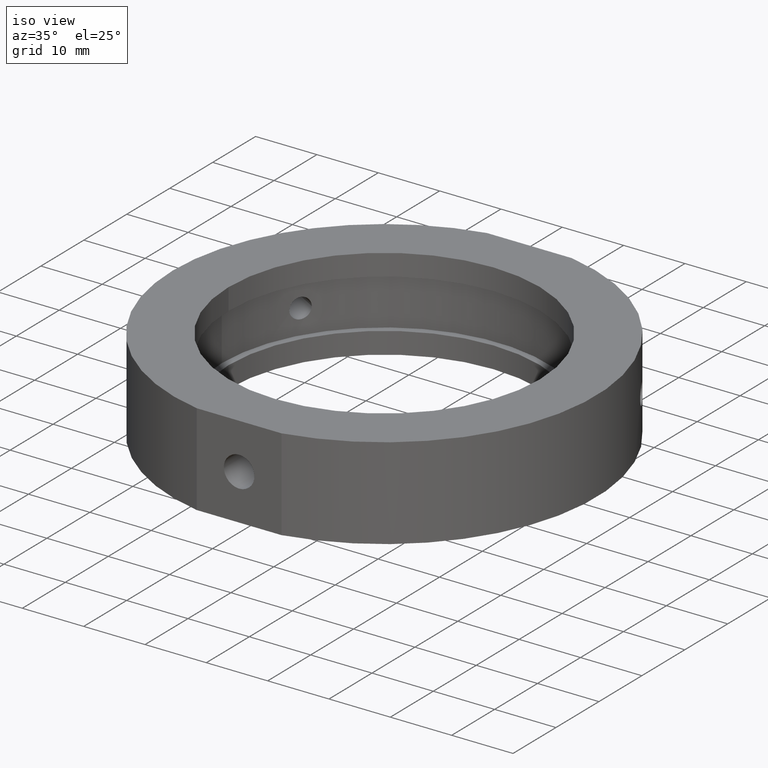
[diagram: clean part render]
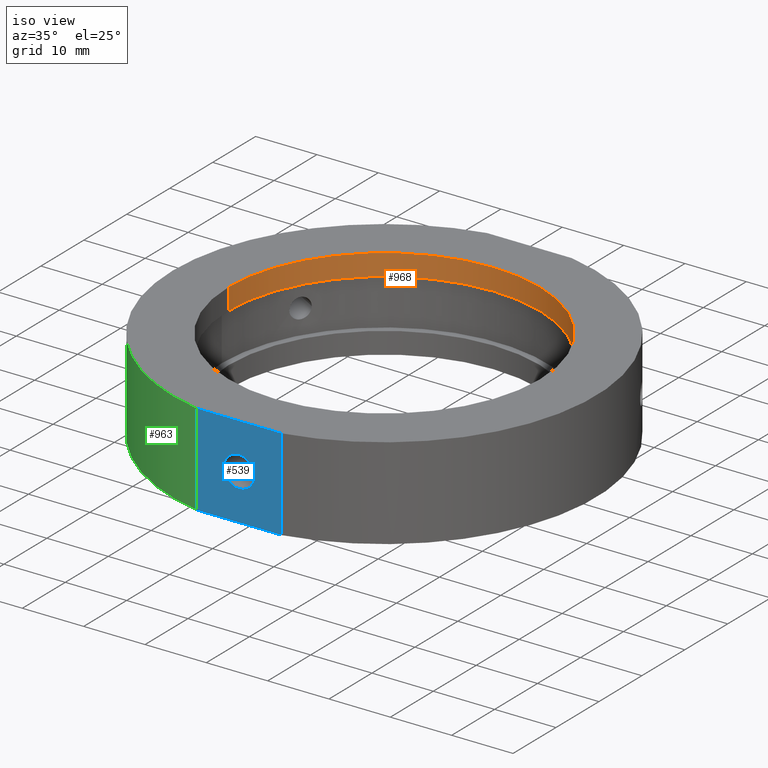
[diagram: same view with three faces highlighted in distinct colors, each labeled with its STEP entity id]
A machine part, iso view with three faces highlighted in distinct colors.
Their STEP definitions:

[orange] entity #968 — the highlighted cylindrical surface (partial cylindrical patch) has radius 25.4 mm, axis along (-0, -0, -1).
#44 = EDGE_CURVE ( 'NONE', #799, #272, #96, .T. ) ;
#58 = DIRECTION ( 'NONE',  ( -1.000000000000000000, 0.0000000000000000000, 0.0000000000000000000 ) ) ;
#72 = DIRECTION ( 'NONE',  ( -1.224646799147350500E-016, -0.0000000000000000000, -1.000000000000000000 ) ) ;
#83 = EDGE_LOOP ( 'NONE', ( #1021, #257, #533, #783 ) ) ;
#96 = LINE ( 'NONE', #700, #1068 ) ;
#214 = CARTESIAN_POINT ( 'NONE',  ( 4.401266471344255700E-015, 0.0000000000000000000, 3.999999999999996400 ) ) ;
#240 = FACE_OUTER_BOUND ( 'NONE', #83, .T. ) ;
#247 = DIRECTION ( 'NONE',  ( -1.224646799147350500E-016, -0.0000000000000000000, -1.000000000000000000 ) ) ;
#257 = ORIENTED_EDGE ( 'NONE', *, *, #413, .F. ) ;
#272 = VERTEX_POINT ( 'NONE', #286 ) ;
#286 = CARTESIAN_POINT ( 'NONE',  ( 25.39999999999999900, 3.110602869834276500E-015, 3.999999999999993300 ) ) ;
#288 = EDGE_CURVE ( 'NONE', #755, #272, #530, .T. ) ;
#310 = DIRECTION ( 'NONE',  ( -1.224646799147350500E-016, -0.0000000000000000000, -1.000000000000000000 ) ) ;
#321 = CARTESIAN_POINT ( 'NONE',  ( 4.829892851045828800E-015, 0.0000000000000000000, 7.500000000000000000 ) ) ;
#350 = LINE ( 'NONE', #720, #973 ) ;
#413 = EDGE_CURVE ( 'NONE', #454, #799, #1095, .T. ) ;
#454 = VERTEX_POINT ( 'NONE', #772 ) ;
#463 = DIRECTION ( 'NONE',  ( -1.224646799147350500E-016, -0.0000000000000000000, -1.000000000000000000 ) ) ;
#469 = AXIS2_PLACEMENT_3D ( 'NONE', #480, #310, #58 ) ;
#480 = CARTESIAN_POINT ( 'NONE',  ( 0.0000000000000000000, 0.0000000000000000000, -31.93906810035839800 ) ) ;
#530 = CIRCLE ( 'NONE', #621, 25.39999999999999500 ) ;
#533 = ORIENTED_EDGE ( 'NONE', *, *, #704, .T. ) ;
#582 = DIRECTION ( 'NONE',  ( -1.000000000000000000, 0.0000000000000000000, 1.365923996832131900E-016 ) ) ;
#621 = AXIS2_PLACEMENT_3D ( 'NONE', #214, #1012, #1100 ) ;
#700 = CARTESIAN_POINT ( 'NONE',  ( 25.39999999999999500, 3.110602869834276500E-015, -31.93906810035839800 ) ) ;
#704 = EDGE_CURVE ( 'NONE', #454, #755, #350, .T. ) ;
#720 = CARTESIAN_POINT ( 'NONE',  ( -25.39999999999999500, 0.0000000000000000000, -31.93906810035839800 ) ) ;
#755 = VERTEX_POINT ( 'NONE', #812 ) ;
#772 = CARTESIAN_POINT ( 'NONE',  ( -25.39999999999999100, 0.0000000000000000000, 7.500000000000003600 ) ) ;
#783 = ORIENTED_EDGE ( 'NONE', *, *, #288, .T. ) ;
#799 = VERTEX_POINT ( 'NONE', #1000 ) ;
#807 = CYLINDRICAL_SURFACE ( 'NONE', #469, 25.39999999999999500 ) ;
#812 = CARTESIAN_POINT ( 'NONE',  ( -25.39999999999999100, 0.0000000000000000000, 4.000000000000000000 ) ) ;
#968 = ADVANCED_FACE ( 'NONE', ( #240 ), #807, .F. ) ;
#973 = VECTOR ( 'NONE', #463, 1000.000000000000000 ) ;
#992 = AXIS2_PLACEMENT_3D ( 'NONE', #321, #72, #582 ) ;
#1000 = CARTESIAN_POINT ( 'NONE',  ( 25.39999999999999900, 3.110602869834276500E-015, 7.499999999999996400 ) ) ;
#1012 = DIRECTION ( 'NONE',  ( -1.224646799147350500E-016, -0.0000000000000000000, -1.000000000000000000 ) ) ;
#1021 = ORIENTED_EDGE ( 'NONE', *, *, #44, .F. ) ;
#1068 = VECTOR ( 'NONE', #247, 1000.000000000000000 ) ;
#1095 = CIRCLE ( 'NONE', #992, 25.39999999999999500 ) ;
#1100 = DIRECTION ( 'NONE',  ( -1.000000000000000000, 0.0000000000000000000, 1.365923996832131900E-016 ) ) ;

[blue] entity #539 — the highlighted planar face has unit normal (-0, 1, 0).
#20 = VERTEX_POINT ( 'NONE', #594 ) ;
#27 = CARTESIAN_POINT ( 'NONE',  ( -6.914477565225098500, -33.79999999999998300, -31.93906810035839800 ) ) ;
#30 = DIRECTION ( 'NONE',  ( -1.224646799147350500E-016, -0.0000000000000000000, -1.000000000000000000 ) ) ;
#39 = CARTESIAN_POINT ( 'NONE',  ( 5.204170427930421300E-015, -33.79999999999999700, -2.499999999999999100 ) ) ;
#64 = CARTESIAN_POINT ( 'NONE',  ( -33.15197265346817100, -33.79999999999999700, -41.50000000000002100 ) ) ;
#69 = DIRECTION ( 'NONE',  ( 0.0000000000000000000, 0.0000000000000000000, -1.000000000000000000 ) ) ;
#94 = AXIS2_PLACEMENT_3D ( 'NONE', #1027, #155, #768 ) ;
#112 = ORIENTED_EDGE ( 'NONE', *, *, #211, .F. ) ;
#135 = LINE ( 'NONE', #27, #517 ) ;
#151 = AXIS2_PLACEMENT_3D ( 'NONE', #64, #246, #848 ) ;
#155 = DIRECTION ( 'NONE',  ( -0.0000000000000000000, -1.000000000000000000, -0.0000000000000000000 ) ) ;
#197 = CARTESIAN_POINT ( 'NONE',  ( -6.914477565225095800, -33.79999999999998300, -7.499999999999992900 ) ) ;
#211 = EDGE_CURVE ( 'NONE', #731, #20, #135, .T. ) ;
#217 = CARTESIAN_POINT ( 'NONE',  ( 34.50000000000000700, -33.79999999999999700, 7.499999999999995600 ) ) ;
#246 = DIRECTION ( 'NONE',  ( -0.0000000000000000000, 1.000000000000000000, 0.0000000000000000000 ) ) ;
#269 = LINE ( 'NONE', #217, #614 ) ;
#308 = ORIENTED_EDGE ( 'NONE', *, *, #397, .F. ) ;
#313 = PLANE ( 'NONE',  #151 ) ;
#316 = DIRECTION ( 'NONE',  ( -0.0000000000000000000, -1.000000000000000000, -0.0000000000000000000 ) ) ;
#367 = LINE ( 'NONE', #396, #906 ) ;
#378 = LINE ( 'NONE', #1090, #766 ) ;
#379 = CARTESIAN_POINT ( 'NONE',  ( 5.510332127717259900E-015, -33.79999999999999700, 2.499999999999999100 ) ) ;
#396 = CARTESIAN_POINT ( 'NONE',  ( 25.40000000000000200, -33.79999999999999700, -7.500000000000002700 ) ) ;
#397 = EDGE_CURVE ( 'NONE', #860, #731, #367, .T. ) ;
#412 = CARTESIAN_POINT ( 'NONE',  ( 5.204170427930421300E-015, -33.79999999999999700, 0.0000000000000000000 ) ) ;
#440 = ORIENTED_EDGE ( 'NONE', *, *, #825, .F. ) ;
#481 = DIRECTION ( 'NONE',  ( -1.000000000000000000, -0.0000000000000000000, 1.224646799147350500E-016 ) ) ;
#491 = EDGE_CURVE ( 'NONE', #910, #846, #665, .T. ) ;
#492 = CARTESIAN_POINT ( 'NONE',  ( 6.914477565225041600, -33.79999999999999700, 7.500000000000006200 ) ) ;
#496 = EDGE_CURVE ( 'NONE', #846, #910, #546, .T. ) ;
#502 = VERTEX_POINT ( 'NONE', #492 ) ;
#517 = VECTOR ( 'NONE', #635, 1000.000000000000000 ) ;
#539 = ADVANCED_FACE ( 'NONE', ( #1067, #1107 ), #313, .F. ) ;
#546 = CIRCLE ( 'NONE', #94, 2.499999999999999100 ) ;
#594 = CARTESIAN_POINT ( 'NONE',  ( -6.914477565225031900, -33.79999999999999700, 7.500000000000000000 ) ) ;
#614 = VECTOR ( 'NONE', #646, 1000.000000000000000 ) ;
#635 = DIRECTION ( 'NONE',  ( 1.224646799147350500E-016, 0.0000000000000000000, 1.000000000000000000 ) ) ;
#646 = DIRECTION ( 'NONE',  ( 1.000000000000000000, 0.0000000000000000000, -1.224646799147350500E-016 ) ) ;
#665 = CIRCLE ( 'NONE', #762, 2.499999999999999100 ) ;
#731 = VERTEX_POINT ( 'NONE', #197 ) ;
#762 = AXIS2_PLACEMENT_3D ( 'NONE', #412, #316, #69 ) ;
#766 = VECTOR ( 'NONE', #30, 1000.000000000000000 ) ;
#768 = DIRECTION ( 'NONE',  ( 0.0000000000000000000, 0.0000000000000000000, -1.000000000000000000 ) ) ;
#800 = EDGE_LOOP ( 'NONE', ( #1069, #1085 ) ) ;
#825 = EDGE_CURVE ( 'NONE', #502, #860, #378, .T. ) ;
#846 = VERTEX_POINT ( 'NONE', #379 ) ;
#848 = DIRECTION ( 'NONE',  ( 0.0000000000000000000, -0.0000000000000000000, 1.000000000000000000 ) ) ;
#860 = VERTEX_POINT ( 'NONE', #1084 ) ;
#906 = VECTOR ( 'NONE', #481, 1000.000000000000000 ) ;
#910 = VERTEX_POINT ( 'NONE', #39 ) ;
#931 = EDGE_LOOP ( 'NONE', ( #1110, #112, #308, #440 ) ) ;
#942 = EDGE_CURVE ( 'NONE', #20, #502, #269, .T. ) ;
#1027 = CARTESIAN_POINT ( 'NONE',  ( 5.204170427930421300E-015, -33.79999999999999700, 0.0000000000000000000 ) ) ;
#1067 = FACE_BOUND ( 'NONE', #800, .T. ) ;
#1069 = ORIENTED_EDGE ( 'NONE', *, *, #491, .F. ) ;
#1084 = CARTESIAN_POINT ( 'NONE',  ( 6.914477565225086100, -33.79999999999999700, -7.500000000000000900 ) ) ;
#1085 = ORIENTED_EDGE ( 'NONE', *, *, #496, .F. ) ;
#1090 = CARTESIAN_POINT ( 'NONE',  ( 6.914477565225098500, -33.79999999999998300, -31.93906810035839800 ) ) ;
#1107 = FACE_OUTER_BOUND ( 'NONE', #931, .T. ) ;
#1110 = ORIENTED_EDGE ( 'NONE', *, *, #942, .F. ) ;

[green] entity #963 — the highlighted cylindrical surface (partial cylindrical patch) has radius 34.5 mm, axis along (-0, -0, -1).
#1 = CARTESIAN_POINT ( 'NONE',  ( -34.49999999999999300, 0.0000000000000000000, 7.500000000000010700 ) ) ;
#10 = EDGE_CURVE ( 'NONE', #654, #771, #666, .T. ) ;
#16 = CIRCLE ( 'NONE', #837, 34.50000000000000000 ) ;
#20 = VERTEX_POINT ( 'NONE', #594 ) ;
#24 = AXIS2_PLACEMENT_3D ( 'NONE', #356, #277, #890 ) ;
#27 = CARTESIAN_POINT ( 'NONE',  ( -6.914477565225098500, -33.79999999999998300, -31.93906810035839800 ) ) ;
#40 = FACE_OUTER_BOUND ( 'NONE', #410, .T. ) ;
#127 = ORIENTED_EDGE ( 'NONE', *, *, #1017, .T. ) ;
#135 = LINE ( 'NONE', #27, #517 ) ;
#197 = CARTESIAN_POINT ( 'NONE',  ( -6.914477565225095800, -33.79999999999998300, -7.499999999999992900 ) ) ;
#211 = EDGE_CURVE ( 'NONE', #731, #20, #135, .T. ) ;
#277 = DIRECTION ( 'NONE',  ( -1.224646799147350500E-016, -0.0000000000000000000, -1.000000000000000000 ) ) ;
#289 = CARTESIAN_POINT ( 'NONE',  ( 0.0000000000000000000, 0.0000000000000000000, -31.93906810035839800 ) ) ;
#356 = CARTESIAN_POINT ( 'NONE',  ( 2.992922652324802700E-015, 0.0000000000000000000, -7.500000000000000000 ) ) ;
#404 = AXIS2_PLACEMENT_3D ( 'NONE', #289, #740, #914 ) ;
#407 = VECTOR ( 'NONE', #427, 1000.000000000000000 ) ;
#410 = EDGE_LOOP ( 'NONE', ( #127, #561, #467, #747 ) ) ;
#427 = DIRECTION ( 'NONE',  ( -1.224646799147350500E-016, -0.0000000000000000000, -1.000000000000000000 ) ) ;
#439 = CARTESIAN_POINT ( 'NONE',  ( -34.50000000000000000, 0.0000000000000000000, -31.93906810035839100 ) ) ;
#467 = ORIENTED_EDGE ( 'NONE', *, *, #669, .F. ) ;
#473 = CYLINDRICAL_SURFACE ( 'NONE', #404, 34.50000000000000000 ) ;
#517 = VECTOR ( 'NONE', #635, 1000.000000000000000 ) ;
#534 = CARTESIAN_POINT ( 'NONE',  ( -34.50000000000000700, 0.0000000000000000000, -7.499999999999995600 ) ) ;
#561 = ORIENTED_EDGE ( 'NONE', *, *, #10, .T. ) ;
#594 = CARTESIAN_POINT ( 'NONE',  ( -6.914477565225031900, -33.79999999999999700, 7.500000000000000000 ) ) ;
#635 = DIRECTION ( 'NONE',  ( 1.224646799147350500E-016, 0.0000000000000000000, 1.000000000000000000 ) ) ;
#654 = VERTEX_POINT ( 'NONE', #1 ) ;
#666 = LINE ( 'NONE', #439, #407 ) ;
#669 = EDGE_CURVE ( 'NONE', #731, #771, #889, .T. ) ;
#731 = VERTEX_POINT ( 'NONE', #197 ) ;
#740 = DIRECTION ( 'NONE',  ( -1.224646799147350500E-016, -0.0000000000000000000, -1.000000000000000000 ) ) ;
#747 = ORIENTED_EDGE ( 'NONE', *, *, #211, .T. ) ;
#759 = DIRECTION ( 'NONE',  ( -1.224646799147350500E-016, -0.0000000000000000000, -1.000000000000000000 ) ) ;
#771 = VERTEX_POINT ( 'NONE', #534 ) ;
#837 = AXIS2_PLACEMENT_3D ( 'NONE', #1109, #759, #929 ) ;
#889 = CIRCLE ( 'NONE', #24, 34.50000000000000700 ) ;
#890 = DIRECTION ( 'NONE',  ( -1.000000000000000000, 0.0000000000000000000, 1.257045997084642600E-016 ) ) ;
#914 = DIRECTION ( 'NONE',  ( -1.000000000000000000, 0.0000000000000000000, 2.011273595335428600E-016 ) ) ;
#929 = DIRECTION ( 'NONE',  ( -1.000000000000000000, 0.0000000000000000000, 1.257045997084642900E-016 ) ) ;
#963 = ADVANCED_FACE ( 'NONE', ( #40 ), #473, .T. ) ;
#1017 = EDGE_CURVE ( 'NONE', #20, #654, #16, .T. ) ;
#1109 = CARTESIAN_POINT ( 'NONE',  ( 4.829892851045829500E-015, 0.0000000000000000000, 7.500000000000007100 ) ) ;